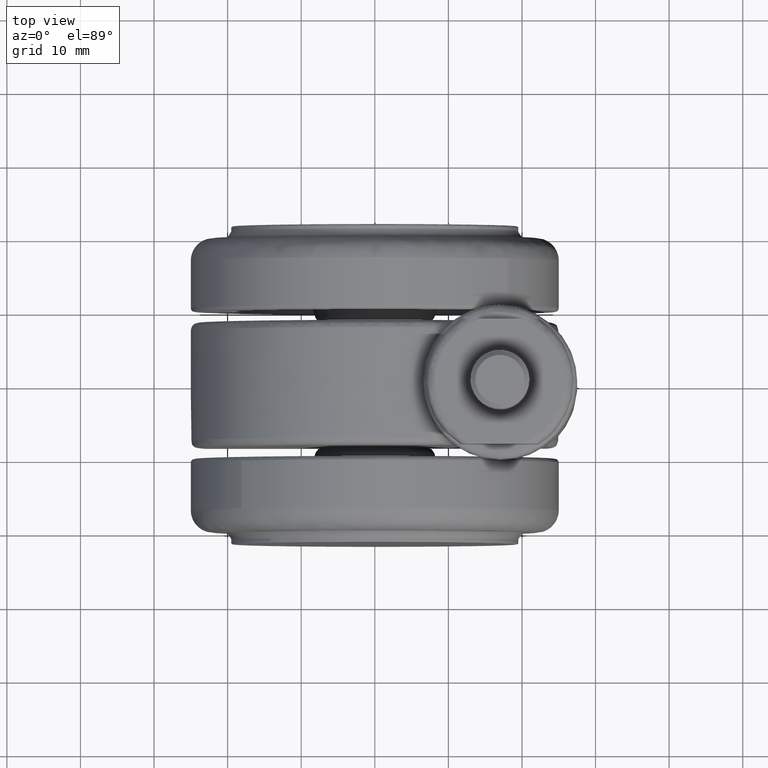
[diagram: clean part render]
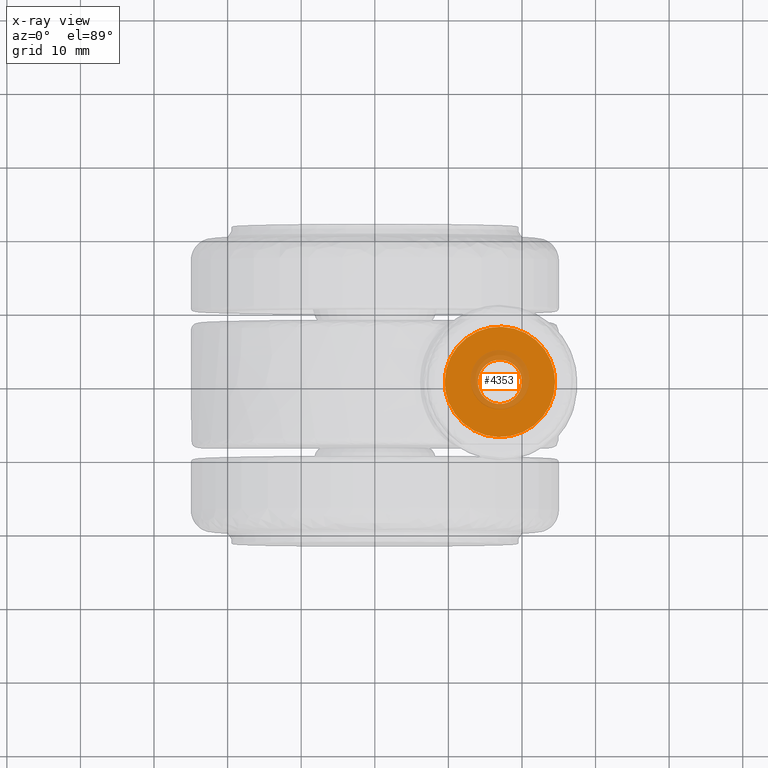
[diagram: x-ray — body ghosted, one internal face saturated and labeled with its STEP entity id]
A machine part, top view, then the same camera in x-ray: the body is ghosted and one INTERNAL B-rep face — a face not visible from any outside direction — is saturated and labeled: STEP entity #4353.
In plain terms, the highlighted face is a freeform B-spline surface patch.
Its self-contained STEP definition (entity closure, byte-faithful):
#3021=CARTESIAN_POINT('',(16.764622712750789,-2.990752001194214,27.0));
#3022=VERTEX_POINT('',#3021);
#3028=CARTESIAN_POINT('',(14.0,0.0,27.0));
#3029=VERTEX_POINT('',#3028);
#3030=CARTESIAN_POINT('',(16.764622712750786,-2.990752001194215,27.000000000000004));
#3031=CARTESIAN_POINT('',(13.999999999999996,-2.773171474913533,26.999999999999989));
#3032=CARTESIAN_POINT('',(14.0,0.0,27.0));
#3040=(BOUNDED_CURVE()B_SPLINE_CURVE(2,(#3030,#3031,#3032),.UNSPECIFIED.,.F.,.U.)B_SPLINE_CURVE_WITH_KNOTS((3,3),(0.763668699370998,1.0),.UNSPECIFIED.)CURVE()GEOMETRIC_REPRESENTATION_ITEM()RATIONAL_B_SPLINE_CURVE((0.969723356163959,0.723120658609607,1.0))REPRESENTATION_ITEM(''));
#3041=EDGE_CURVE('',#3022,#3029,#3040,.T.);
#3043=CARTESIAN_POINT('',(17.235377287249221,2.990752001194214,27.0));
#3044=VERTEX_POINT('',#3043);
#3045=CARTESIAN_POINT('',(14.0,0.0,27.0));
#3046=CARTESIAN_POINT('',(13.999999999999998,3.0,27.000000000000011));
#3047=CARTESIAN_POINT('',(17.0,3.0,27.0));
#3048=CARTESIAN_POINT('',(17.117870321055999,3.000000000000000,26.999999999999996));
#3049=CARTESIAN_POINT('',(17.235377287249221,2.990752001194215,27.000000000000004));
#3057=(BOUNDED_CURVE()B_SPLINE_CURVE(2,(#3045,#3046,#3047,#3048,#3049),.UNSPECIFIED.,.F.,.U.)B_SPLINE_CURVE_WITH_KNOTS((3,2,3),(0.0,0.250000000000000,0.263668699370998),.UNSPECIFIED.)CURVE()GEOMETRIC_REPRESENTATION_ITEM()RATIONAL_B_SPLINE_CURVE((1.0,0.707106781186548,1.0,0.983986122576940,0.969723356163958))REPRESENTATION_ITEM(''));
#3058=EDGE_CURVE('',#3029,#3044,#3057,.T.);
#3088=CARTESIAN_POINT('',(20.0,0.0,27.0));
#3089=VERTEX_POINT('',#3088);
#3090=CARTESIAN_POINT('',(17.235377287249218,2.990752001194215,27.0));
#3091=CARTESIAN_POINT('',(19.999999999999989,2.773171474913525,27.0));
#3092=CARTESIAN_POINT('',(20.0,0.0,27.0));
#3100=(BOUNDED_CURVE()B_SPLINE_CURVE(2,(#3090,#3091,#3092),.UNSPECIFIED.,.F.,.U.)B_SPLINE_CURVE_WITH_KNOTS((3,3),(0.263668699370998,0.500000000000000),.UNSPECIFIED.)CURVE()GEOMETRIC_REPRESENTATION_ITEM()RATIONAL_B_SPLINE_CURVE((0.969723356163958,0.723120658609608,1.0))REPRESENTATION_ITEM(''));
#3101=EDGE_CURVE('',#3044,#3089,#3100,.T.);
#3103=CARTESIAN_POINT('',(20.0,0.0,27.0));
#3104=CARTESIAN_POINT('',(19.999999999999996,-3.0,27.000000000000011));
#3105=CARTESIAN_POINT('',(17.0,-3.0,27.0));
#3106=CARTESIAN_POINT('',(16.882129678944001,-3.000000000000000,27.000000000000004));
#3107=CARTESIAN_POINT('',(16.764622712750786,-2.990752001194215,27.000000000000004));
#3115=(BOUNDED_CURVE()B_SPLINE_CURVE(2,(#3103,#3104,#3105,#3106,#3107),.UNSPECIFIED.,.F.,.U.)B_SPLINE_CURVE_WITH_KNOTS((3,2,3),(0.500000000000000,0.750000000000000,0.763668699370998),.UNSPECIFIED.)CURVE()GEOMETRIC_REPRESENTATION_ITEM()RATIONAL_B_SPLINE_CURVE((1.0,0.707106781186548,1.0,0.983986122576940,0.969723356163959))REPRESENTATION_ITEM(''));
#3116=EDGE_CURVE('',#3089,#3022,#3115,.T.);
#4188=CARTESIAN_POINT('',(24.499407831528341,0.094245299147605,27.000000001194230));
#4189=VERTEX_POINT('',#4188);
#4203=CARTESIAN_POINT('',(9.500000000000002,0.0,27.0));
#4204=VERTEX_POINT('',#4203);
#4205=CARTESIAN_POINT('',(9.500000000000002,0.0,27.0));
#4206=CARTESIAN_POINT('',(9.499688067733638,0.733394758746324,27.000000000000341));
#4207=CARTESIAN_POINT('',(9.680755731277611,1.955469255696433,27.000000000015380));
#4208=CARTESIAN_POINT('',(10.312916099433410,3.488220158874416,27.000000000066429));
#4209=CARTESIAN_POINT('',(10.946219061371320,4.466551577039486,27.000000000117382));
#4210=CARTESIAN_POINT('',(11.683145294638971,5.325800978459150,27.000000000176492));
#4211=CARTESIAN_POINT('',(12.466592562548350,6.014786575625054,27.000000000239169));
#4212=CARTESIAN_POINT('',(13.399348872303619,6.602661244002673,27.000000000313779));
#4213=CARTESIAN_POINT('',(14.315917671355191,7.027556970339751,27.000000000386940));
#4214=CARTESIAN_POINT('',(15.428330590668470,7.371242592616089,27.000000000475669));
#4215=CARTESIAN_POINT('',(16.889916061822049,7.560249716566661,27.000000000592159));
#4216=CARTESIAN_POINT('',(18.300100994590220,7.430830799556859,27.000000000704279));
#4217=CARTESIAN_POINT('',(19.567062442503271,7.073447785025683,27.000000000805230));
#4218=CARTESIAN_POINT('',(20.660915657385988,6.591064697624479,27.000000000891081));
#4219=CARTESIAN_POINT('',(21.730560795890820,5.870794353839127,27.000000000978041));
#4220=CARTESIAN_POINT('',(22.544875465556171,5.081318031018037,27.000000001040600));
#4221=CARTESIAN_POINT('',(23.192934369007730,4.267672713857817,27.000000001092381));
#4222=CARTESIAN_POINT('',(23.764353094829541,3.323610348735891,27.000000001137039));
#4223=CARTESIAN_POINT('',(24.323675877130629,1.894911068634029,27.000000001182251));
#4224=CARTESIAN_POINT('',(24.491204256380279,0.766467780842335,27.000000001192401));
#4225=CARTESIAN_POINT('',(24.499407831528341,0.094245299147605,27.000000001194230));
#4226=B_SPLINE_CURVE_WITH_KNOTS('',3,(#4205,#4206,#4207,#4208,#4209,#4210,#4211,#4212,#4213,#4214,#4215,#4216,#4217,#4218,#4219,#4220,#4221,#4222,#4223,#4224,#4225),.UNSPECIFIED.,.F.,.U.,(4,1,1,1,1,1,1,1,1,1,1,1,1,1,1,1,1,1,4),(0.000000076938282,2.200086170977098,3.666831536713655,4.950240064084230,5.683618319443156,7.058699818356274,8.067095231933150,8.983817014370144,10.083866631153519,11.550627022980830,13.383961733530651,14.300700387025049,15.492430566269761,16.959176568497920,18.150916616466489,18.884293546840450,20.076032567508399,21.451097995740461,23.467843196643049),.UNSPECIFIED.);
#4227=EDGE_CURVE('',#4204,#4189,#4226,.T.);
#4229=CARTESIAN_POINT('',(9.500592168471663,-0.094245299147605,27.000000001194220));
#4230=VERTEX_POINT('',#4229);
#4231=CARTESIAN_POINT('',(9.500592168471663,-0.094245299147605,27.000000001194227));
#4232=CARTESIAN_POINT('',(9.500000000000004,-0.047124509950405,27.000000000597119));
#4233=CARTESIAN_POINT('',(9.500000000000002,0.0,27.0));
#4241=(BOUNDED_CURVE()B_SPLINE_CURVE(2,(#4231,#4232,#4233),.UNSPECIFIED.,.F.,.U.)B_SPLINE_CURVE_WITH_KNOTS((3,3),(0.997784295921201,1.0),.UNSPECIFIED.)CURVE()GEOMETRIC_REPRESENTATION_ITEM()RATIONAL_B_SPLINE_CURVE((0.994854295642800,0.997404141201690,1.0))REPRESENTATION_ITEM(''));
#4242=EDGE_CURVE('',#4230,#4204,#4241,.T.);
#4291=CARTESIAN_POINT('',(24.500000000000000,0.0,27.0));
#4292=VERTEX_POINT('',#4291);
#4293=CARTESIAN_POINT('',(24.500000000000000,0.0,27.0));
#4294=CARTESIAN_POINT('',(24.500070177307141,-0.488907680413994,27.000000000000210));
#4295=CARTESIAN_POINT('',(24.422015683863599,-1.283357134528805,27.000000000006860));
#4296=CARTESIAN_POINT('',(24.126689682595451,-2.408580244432222,27.000000000030930));
#4297=CARTESIAN_POINT('',(23.729545201426081,-3.371641009081052,27.000000000063029));
#4298=CARTESIAN_POINT('',(23.086102088180990,-4.450562557997271,27.000000000114809));
#4299=CARTESIAN_POINT('',(22.300541545601739,-5.355254297361576,27.000000000177739));
#4300=CARTESIAN_POINT('',(21.262271972462369,-6.213463357058679,27.000000000260901));
#4301=CARTESIAN_POINT('',(20.119663221171841,-6.876508108935576,27.000000000352181));
#4302=CARTESIAN_POINT('',(18.809901467684060,-7.316389633523631,27.000000000456680));
#4303=CARTESIAN_POINT('',(17.416959957100321,-7.531175603380334,27.000000000567692));
#4304=CARTESIAN_POINT('',(16.064965027508649,-7.490083759830516,27.000000000675300));
#4305=CARTESIAN_POINT('',(14.690070953259790,-7.173979088444343,27.000000000784610));
#4306=CARTESIAN_POINT('',(13.417299739510080,-6.640307161612149,27.000000000885681));
#4307=CARTESIAN_POINT('',(12.368217968813640,-5.943150760591783,27.000000000968861));
#4308=CARTESIAN_POINT('',(11.473513083238100,-5.107021265371947,27.000000001039641));
#4309=CARTESIAN_POINT('',(10.876947312807291,-4.367359466303619,27.000000001086779));
#4310=CARTESIAN_POINT('',(10.332936258244221,-3.480771465192142,27.000000001129798));
#4311=CARTESIAN_POINT('',(9.956257735767180,-2.641855933762561,27.000000001158810));
#4312=CARTESIAN_POINT('',(9.609052138337862,-1.467995890851629,27.000000001187232));
#4313=CARTESIAN_POINT('',(9.507396809897308,-0.644227867009560,27.000000001192380));
#4314=CARTESIAN_POINT('',(9.500592168471663,-0.094245299147605,27.000000001194220));
#4315=B_SPLINE_CURVE_WITH_KNOTS('',3,(#4293,#4294,#4295,#4296,#4297,#4298,#4299,#4300,#4301,#4302,#4303,#4304,#4305,#4306,#4307,#4308,#4309,#4310,#4311,#4312,#4313,#4314),.UNSPECIFIED.,.F.,.U.,(4,1,1,1,1,1,1,1,1,1,1,1,1,1,1,1,1,1,1,4),(0.000000077085474,1.466713860805339,2.383452259675700,3.483501823239081,4.583554355935632,6.141978860386999,7.058699818462113,8.617113516353555,10.083866631241859,11.183928008539141,12.833936846352440,14.117346265249930,15.400753400217990,16.959176568541491,17.875899277970390,19.067639984595370,19.801006011431451,20.992726959525118,21.817794706009199,23.467843196642651),.UNSPECIFIED.);
#4316=EDGE_CURVE('',#4292,#4230,#4315,.T.);
#4318=CARTESIAN_POINT('',(24.499407831528334,0.094245299147605,27.000000001194223));
#4319=CARTESIAN_POINT('',(24.499999999999993,0.047124509950405,27.000000000597119));
#4320=CARTESIAN_POINT('',(24.500000000000000,0.0,27.0));
#4328=(BOUNDED_CURVE()B_SPLINE_CURVE(2,(#4318,#4319,#4320),.UNSPECIFIED.,.F.,.U.)B_SPLINE_CURVE_WITH_KNOTS((3,3),(0.497784295921201,0.500000000000000),.UNSPECIFIED.)CURVE()GEOMETRIC_REPRESENTATION_ITEM()RATIONAL_B_SPLINE_CURVE((0.994854295642800,0.997404141201690,1.0))REPRESENTATION_ITEM(''));
#4329=EDGE_CURVE('',#4189,#4292,#4328,.T.);
#4336=CARTESIAN_POINT('',(25.249249970927089,-8.249087502738417,27.0));
#4337=CARTESIAN_POINT('',(8.750749626741561,-8.249087502738417,27.0));
#4338=CARTESIAN_POINT('',(25.249249970927089,8.249087905061851,27.0));
#4339=CARTESIAN_POINT('',(8.750749626741561,8.249087905061851,27.0));
#4340=B_SPLINE_SURFACE_WITH_KNOTS('',1,1,((#4336,#4338),(#4337,#4339)),.UNSPECIFIED.,.F.,.F.,.U.,(2,2),(2,2),(0.0,16.498500344185530),(0.0,16.498175407800272),.UNSPECIFIED.);
#4341=ORIENTED_EDGE('',*,*,#4227,.T.);
#4342=ORIENTED_EDGE('',*,*,#4329,.T.);
#4343=ORIENTED_EDGE('',*,*,#4316,.T.);
#4344=ORIENTED_EDGE('',*,*,#4242,.T.);
#4345=EDGE_LOOP('',(#4341,#4342,#4343,#4344));
#4346=FACE_OUTER_BOUND('',#4345,.T.);
#4347=ORIENTED_EDGE('',*,*,#3116,.F.);
#4348=ORIENTED_EDGE('',*,*,#3101,.F.);
#4349=ORIENTED_EDGE('',*,*,#3058,.F.);
#4350=ORIENTED_EDGE('',*,*,#3041,.F.);
#4351=EDGE_LOOP('',(#4347,#4348,#4349,#4350));
#4352=FACE_BOUND('',#4351,.T.);
#4353=ADVANCED_FACE('',(#4346,#4352),#4340,.T.);